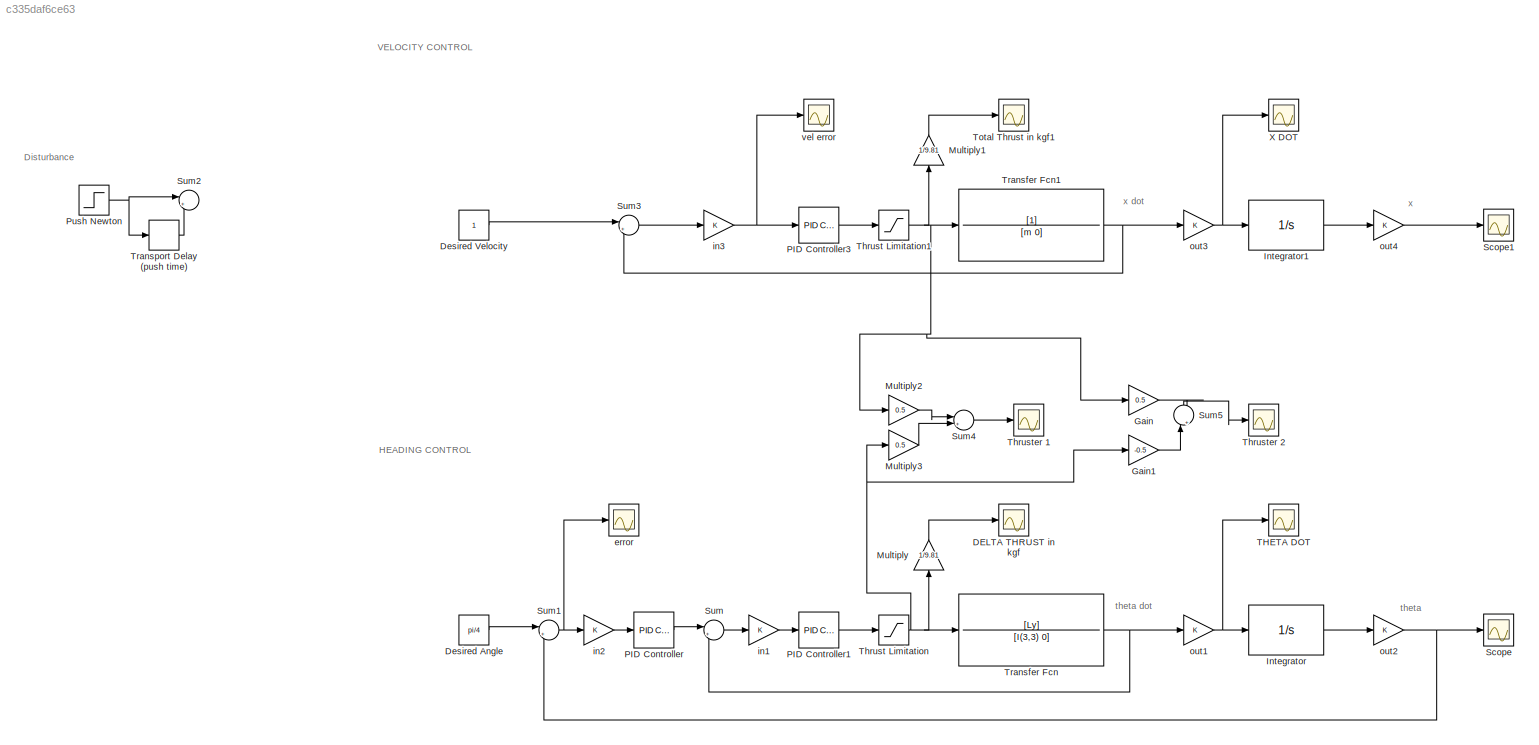
MODEL slx_c335daf6ce63
KIND model
CONFIG AbsTol = auto
CONFIG EnableMultiTasking = off
CONFIG FixedStep = auto
CONFIG MaxStep = auto
CONFIG MinStep = auto
CONFIG RelTol = 1e-3
CONFIG SampleTimeConstraint = Unconstrained
CONFIG SolverName = VariableStepAuto
CONFIG StartTime = 0.0
CONFIG StopTime = 10
BLOCK [Scope] DELTA THRUST in kgf
  Floating = off
  NumInputPorts = 1
  Ports = [1]
  ScopeSpecificationString = Simulink.scopes.TimeScopeBlockCfg('CurrentConfiguration', extmgr.ConfigurationSet(extmgr.Configuration('Core','General UI',true),extmgr.Configuration('Core','Source UI',true),extmgr.Configuration('Sources','WiredSimulink',true),extmgr.Configuration('Visuals','Time Domain',true,'SerializedDisplays',{struct('MinYLimReal','-0.44829','MaxYLimReal','1.82894','YLabelReal','','MinYLimMag','0.00000','MaxY...<+1357ch>
BLOCK [Constant] Desired Angle
  Value = pi/4
BLOCK [Constant] Desired Velocity
BLOCK [Gain] Gain
  Gain = 0.5
BLOCK [Gain] Gain1
  Gain = -0.5
BLOCK [Integrator] Integrator
  Ports = [1, 1]
BLOCK [Integrator] Integrator1
  Ports = [1, 1]
BLOCK [Gain] Multiply
  Gain = 1/9.81
  NameLocation = right
BLOCK [Gain] Multiply1
  Gain = 1/9.81
  NameLocation = right
BLOCK [Gain] Multiply2
  Gain = 0.5
BLOCK [Gain] Multiply3
  Gain = 0.5
BLOCK [Reference] PID Controller  REF=slpidlib/PID Controller
  Ports = [1, 1]
  SourceBlock = slpidlib/PID Controller
  SourceProductBaseCode = SL
  SourceType = PID 1dof
BLOCK [Reference] PID Controller1  REF=slpidlib/PID Controller
  Ports = [1, 1]
  SourceBlock = slpidlib/PID Controller
  SourceProductBaseCode = SL
  SourceType = PID 1dof
BLOCK [Reference] PID Controller3  REF=slpidlib/PID Controller
  Ports = [1, 1]
  SourceBlock = slpidlib/PID Controller
  SourceProductBaseCode = SL
  SourceType = PID 1dof
BLOCK [Step] Push Newton
  SampleTime = 0
BLOCK [Scope] Scope
  Floating = off
  NumInputPorts = 1
  Ports = [1]
  ScopeSpecificationString = Simulink.scopes.TimeScopeBlockCfg('CurrentConfiguration', extmgr.ConfigurationSet(extmgr.Configuration('Core','General UI',true),extmgr.Configuration('Core','Source UI',true),extmgr.Configuration('Sources','WiredSimulink',true,'DataLoggingVariableName','ScopeData1'),extmgr.Configuration('Visuals','Time Domain',true,'SerializedDisplays',{struct('MinYLimReal','-0.09817','MaxYLimReal','0.88357','YLab...<+1392ch>
BLOCK [Scope] Scope1
  Floating = off
  NumInputPorts = 1
  Ports = [1]
  ScopeSpecificationString = Simulink.scopes.TimeScopeBlockCfg('CurrentConfiguration', extmgr.ConfigurationSet(extmgr.Configuration('Core','General UI',true),extmgr.Configuration('Core','Source UI',true),extmgr.Configuration('Sources','WiredSimulink',true,'DataLoggingVariableName','ScopeData2'),extmgr.Configuration('Visuals','Time Domain',true,'SerializedDisplays',{struct('MinYLimReal','-1.13339','MaxYLimReal','10.20055','YLa...<+1396ch>
BLOCK [Sum] Sum
  Inputs = |+-
  Ports = [2, 1]
BLOCK [Sum] Sum1
  Inputs = |+-
  Ports = [2, 1]
BLOCK [Sum] Sum2
  Inputs = |+-
  Ports = [2, 1]
BLOCK [Sum] Sum3
  Inputs = |+-
  Ports = [2, 1]
BLOCK [Sum] Sum4
  Inputs = |++
  Ports = [2, 1]
BLOCK [Sum] Sum5
  Inputs = |++
  NameLocation = right
  Ports = [2, 1]
BLOCK [Scope] THETA DOT
  Floating = off
  NumInputPorts = 1
  Ports = [1]
  ScopeSpecificationString = Simulink.scopes.TimeScopeBlockCfg('CurrentConfiguration', extmgr.ConfigurationSet(extmgr.Configuration('Core','General UI',true),extmgr.Configuration('Core','Source UI',true),extmgr.Configuration('Sources','WiredSimulink',true,'DataLoggingVariableName','ScopeData3'),extmgr.Configuration('Visuals','Time Domain',true,'SerializedDisplays',{struct('MinYLimReal','-0.14258','MaxYLimReal','1.2832','YLabe...<+1388ch>
BLOCK [Saturate] Thrust Limitation
  LowerLimit = -2.5*9.81
  UpperLimit = 3*9.81
BLOCK [Saturate] Thrust Limitation1
  LowerLimit = -2.5*9.81
  UpperLimit = 3*9.81
BLOCK [Scope] Thruster 1
  Floating = off
  NumInputPorts = 1
  Ports = [1]
  ScopeSpecificationString = Simulink.scopes.TimeScopeBlockCfg('CurrentConfiguration', extmgr.ConfigurationSet(extmgr.Configuration('Core','General UI',true),extmgr.Configuration('Core','Source UI',true),extmgr.Configuration('Sources','WiredSimulink',true,'DataLoggingVariableName','ScopeData1'),extmgr.Configuration('Visuals','Time Domain',true,'SerializedDisplays',{struct('MinYLimReal','-1.66793','MaxYLimReal','10.02308','YLa...<+1396ch>
BLOCK [Scope] Thruster 2
  Floating = off
  NumInputPorts = 1
  Ports = [1]
  ScopeSpecificationString = Simulink.scopes.TimeScopeBlockCfg('CurrentConfiguration', extmgr.ConfigurationSet(extmgr.Configuration('Core','General UI',true),extmgr.Configuration('Core','Source UI',true),extmgr.Configuration('Sources','WiredSimulink',true,'DataLoggingVariableName','ScopeData2'),extmgr.Configuration('Visuals','Time Domain',true,'SerializedDisplays',{struct('MinYLimReal','-7.91885','MaxYLimReal','2.72983','YLab...<+1392ch>
BLOCK [Scope] Total Thrust in kgf1
  Floating = off
  NumInputPorts = 1
  Ports = [1]
  ScopeSpecificationString = Simulink.scopes.TimeScopeBlockCfg('CurrentConfiguration', extmgr.ConfigurationSet(extmgr.Configuration('Core','General UI',true),extmgr.Configuration('Core','Source UI',true),extmgr.Configuration('Sources','WiredSimulink',true,'DataLoggingVariableName','ScopeData1'),extmgr.Configuration('Visuals','Time Domain',true,'SerializedDisplays',{struct('MinYLimReal','-0.44829','MaxYLimReal','1.82894','YLab...<+1396ch>
BLOCK [TransferFcn] Transfer Fcn
  Denominator = [I(3,3) 0]
  Numerator = [Ly]
BLOCK [TransferFcn] Transfer Fcn1
  Denominator = [m 0]
BLOCK [TransportDelay] Transport Delay (push time)
  DelayTime = 0.1
  Ports = [1, 1]
BLOCK [Scope] X DOT
  Floating = off
  NumInputPorts = 1
  Ports = [1]
  ScopeSpecificationString = Simulink.scopes.TimeScopeBlockCfg('CurrentConfiguration', extmgr.ConfigurationSet(extmgr.Configuration('Core','General UI',true),extmgr.Configuration('Core','Source UI',true),extmgr.Configuration('Sources','WiredSimulink',true,'DataLoggingVariableName','ScopeData3'),extmgr.Configuration('Visuals','Time Domain',true,'SerializedDisplays',{struct('MinYLimReal','-0.125','MaxYLimReal','1.12498','YLabel...<+1388ch>
BLOCK [Scope] error
  Floating = off
  NumInputPorts = 1
  Ports = [1]
  ScopeSpecificationString = Simulink.scopes.TimeScopeBlockCfg('CurrentConfiguration', extmgr.ConfigurationSet(extmgr.Configuration('Core','General UI',true),extmgr.Configuration('Core','Source UI',true),extmgr.Configuration('Sources','WiredSimulink',true,'DataLoggingVariableName','ScopeData2'),extmgr.Configuration('Visuals','Time Domain',true,'SerializedDisplays',{struct('MinYLimReal','-0.09817','MaxYLimReal','0.88357','YLab...<+1392ch>
BLOCK [Gain] in1
BLOCK [Gain] in2
BLOCK [Gain] in3
BLOCK [Gain] out1
BLOCK [Gain] out2
BLOCK [Gain] out3
BLOCK [Gain] out4
BLOCK [Scope] vel error
  Floating = off
  NumInputPorts = 1
  Ports = [1]
  ScopeSpecificationString = Simulink.scopes.TimeScopeBlockCfg('CurrentConfiguration', extmgr.ConfigurationSet(extmgr.Configuration('Core','General UI',true),extmgr.Configuration('Core','Source UI',true),extmgr.Configuration('Sources','WiredSimulink',true,'DataLoggingVariableName','ScopeData4'),extmgr.Configuration('Visuals','Time Domain',true,'SerializedDisplays',{struct('MinYLimReal','-0.09817','MaxYLimReal','0.88357','YLab...<+1392ch>
ANNOTATION (root): Disturbance
ANNOTATION (root): HEADING CONTROL
ANNOTATION (root): VELOCITY CONTROL
ANNOTATION (root): theta
ANNOTATION (root): theta dot
ANNOTATION (root): x
ANNOTATION (root): x dot
LINE Desired Angle:1 -> Sum1:1
LINE Desired Velocity:1 -> Sum3:1
LINE Gain1:1 -> Sum5:1
LINE Gain:1 -> Sum5:2
LINE Integrator1:1 -> out4:1
LINE Integrator:1 -> out2:1
LINE Multiply1:1 -> Total Thrust in kgf1:1
LINE Multiply2:1 -> Sum4:1
LINE Multiply3:1 -> Sum4:2
LINE Multiply:1 -> DELTA THRUST in kgf:1
LINE PID Controller1:1 -> Thrust Limitation:1
LINE PID Controller3:1 -> Thrust Limitation1:1
LINE PID Controller:1 -> Sum:1
NET Push Newton:1 -> Sum2:1, Transport Delay (push time):1
NET Sum1:1 -> error:1, in2:1
LINE Sum3:1 -> in3:1
LINE Sum4:1 -> Thruster 1:1
LINE Sum5:1 -> Thruster 2:1
LINE Sum:1 -> in1:1
NET Thrust Limitation1:1 -> Gain:1, Multiply1:1, Multiply2:1, Transfer Fcn1:1
NET Thrust Limitation:1 -> Gain1:1, Multiply3:1, Multiply:1, Transfer Fcn:1
NET Transfer Fcn1:1 -> Sum3:2, out3:1
NET Transfer Fcn:1 -> Sum:2, out1:1
LINE Transport Delay (push time):1 -> Sum2:2
LINE in1:1 -> PID Controller1:1
LINE in2:1 -> PID Controller:1
NET in3:1 -> PID Controller3:1, vel error:1
NET out1:1 -> Integrator:1, THETA DOT:1
NET out2:1 -> Scope:1, Sum1:2
NET out3:1 -> Integrator1:1, X DOT:1
LINE out4:1 -> Scope1:1
note: NET lines group one-source signal fan-out (src -> all destinations, sorted); 1:1 wires keep LINE
